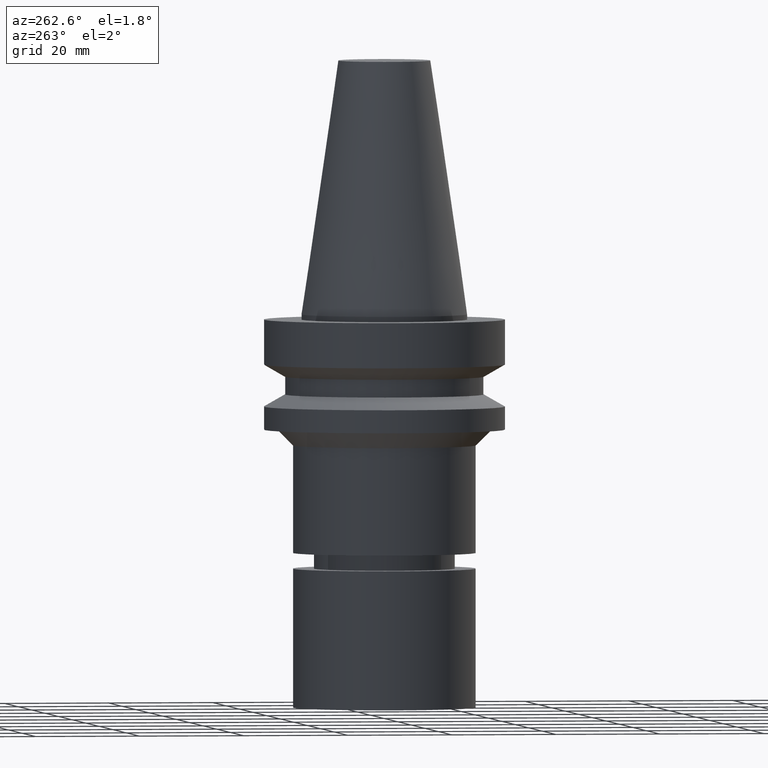
[diagram: clean part render]
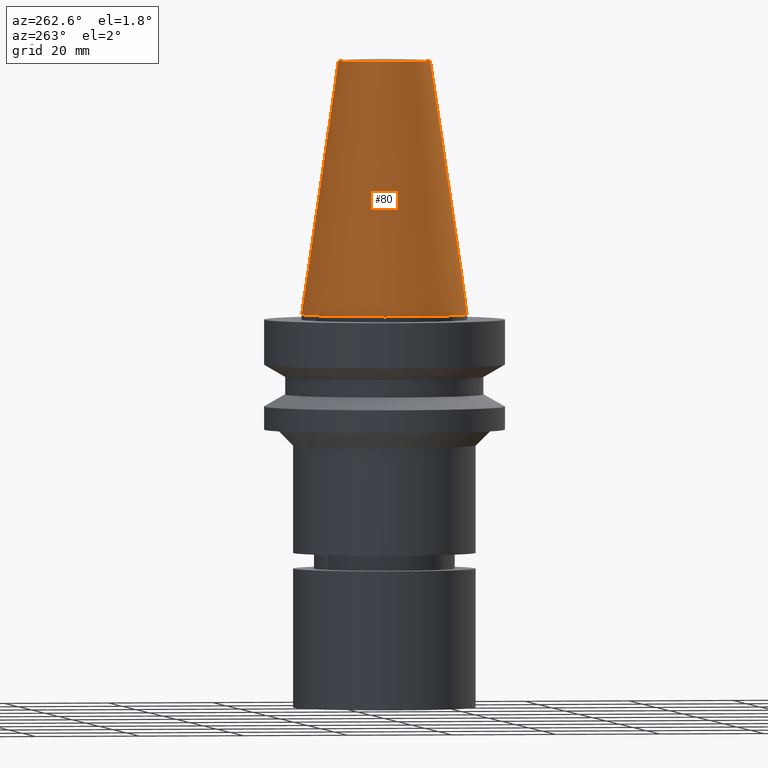
[diagram: same view with one face highlighted and labeled with its STEP entity id]
A machine part, auxiliary view. The second image highlights one B-rep face of the part: STEP entity #80.
In plain terms, the highlighted conical surface has half-angle 8.297 deg.
Its self-contained STEP definition (entity closure, byte-faithful):
#80=ADVANCED_FACE('Unnamed[1]',(#208,#209),#210,.T.);
#104=EDGE_CURVE('Unnamed[1]',#246,#246,#247,.T.);
#138=EDGE_CURVE('Unnamed[1]',#301,#301,#302,.T.);
#208=FACE_BOUND('',#386,.T.);
#209=FACE_BOUND('',#387,.T.);
#210=CONICAL_SURFACE('',#388,12.3457500009933,0.144815870013618);
#246=VERTEX_POINT('',#434);
#247=CIRCLE('',#435,8.81650000198669);
#301=VERTEX_POINT('',#502);
#302=CIRCLE('',#503,15.875);
#386=EDGE_LOOP('',(#587));
#387=EDGE_LOOP('',(#588));
#388=AXIS2_PLACEMENT_3D('',#589,#590,#591);
#434=CARTESIAN_POINT('',(-2.96364525393659E-015,8.81650000198669,48.4));
#435=AXIS2_PLACEMENT_3D('',#630,#631,#632);
#502=CARTESIAN_POINT('',(-1.95674482349743E-031,15.875,1.94412679364642E-015));
#503=AXIS2_PLACEMENT_3D('',#693,#694,#695);
#587=ORIENTED_EDGE('',*,*,#138,.F.);
#588=ORIENTED_EDGE('',*,*,#104,.T.);
#589=CARTESIAN_POINT('',(-1.4818226269683E-015,-2.96364525393659E-015,24.2));
#590=DIRECTION('',(6.12323399573677E-017,1.22464679914735E-016,-1.0));
#591=DIRECTION('',(-1.23259516440783E-032,1.0,1.22464679914735E-016));
#630=CARTESIAN_POINT('',(-2.96364525393659E-015,-5.92729050787319E-015,48.4));
#631=DIRECTION('',(6.12323399573677E-017,1.22464679914735E-016,-1.0));
#632=DIRECTION('',(-1.23259516440783E-032,1.0,1.22464679914735E-016));
#693=CARTESIAN_POINT('',(0.0,0.0,0.0));
#694=DIRECTION('',(6.12323399573677E-017,1.22464679914735E-016,-1.0));
#695=DIRECTION('',(-1.23259516440783E-032,1.0,1.22464679914735E-016));